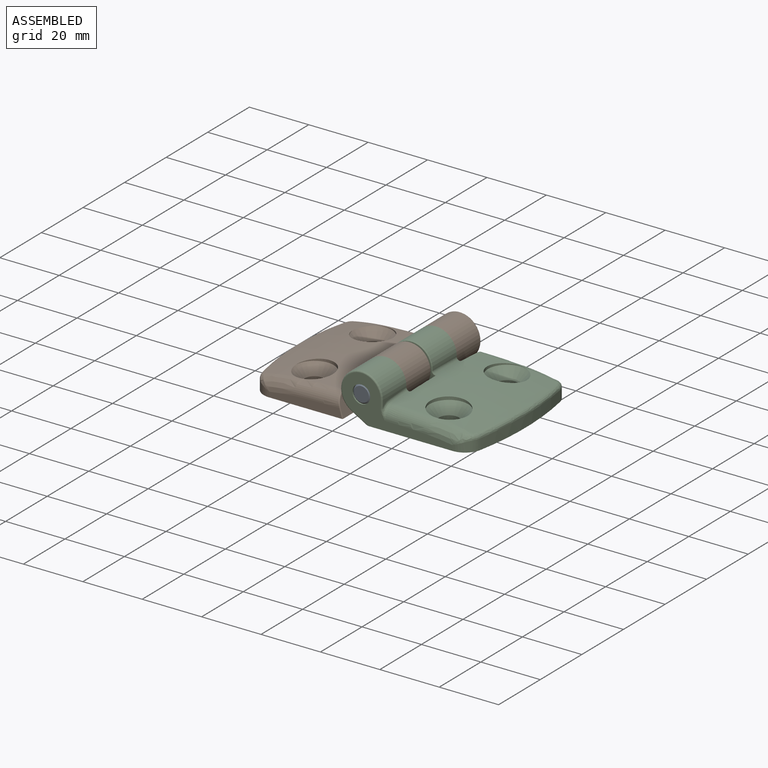
[diagram: assembled view]
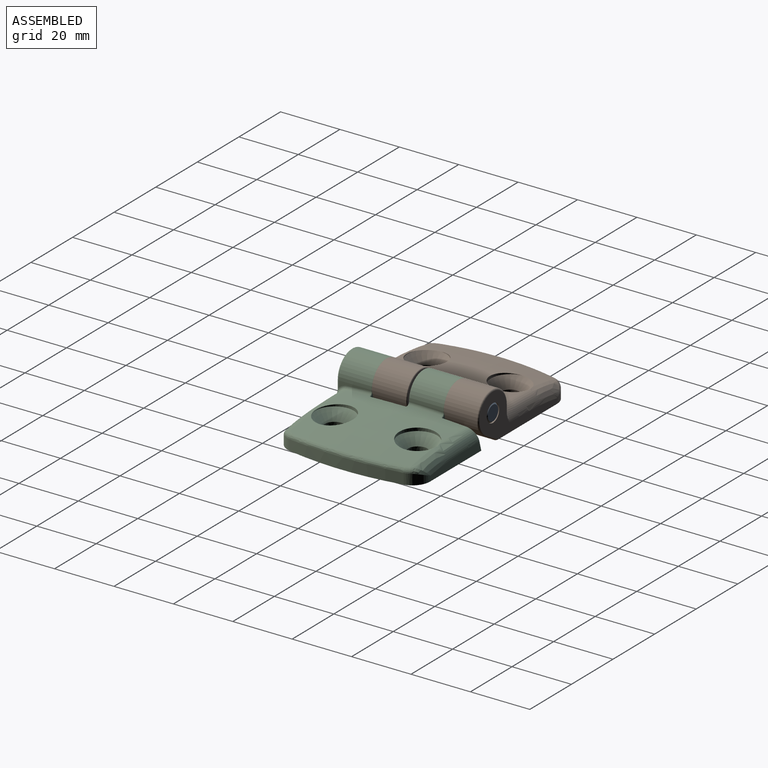
[diagram: assembled view, second angle]
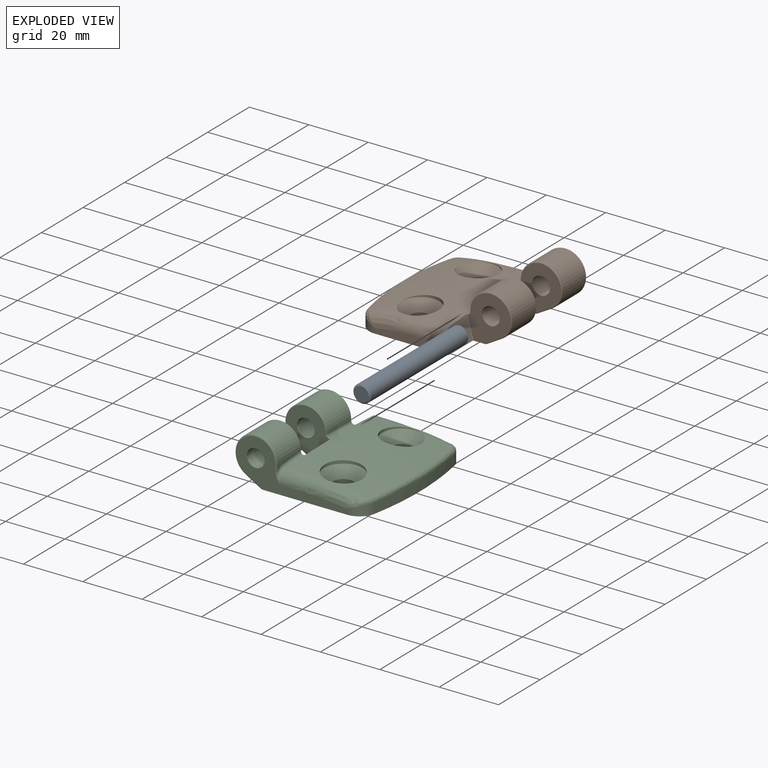
[diagram: exploded view]
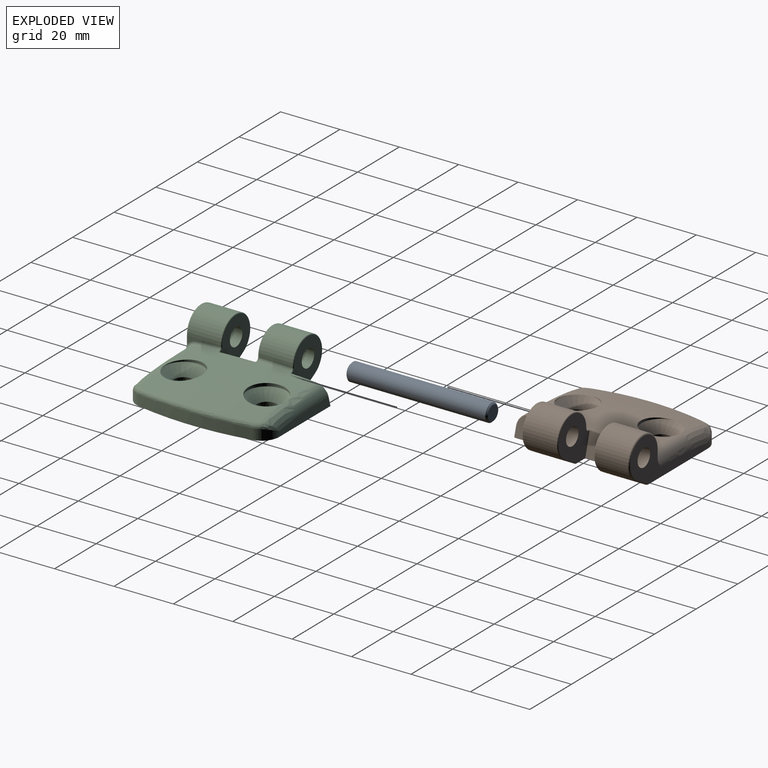
[diagram: exploded view, second angle]
ASSEMBLY  parts=3 mates=2
PART A: 5 faces, bbox 6x47.6x6 mm
  f0: cone r=2.5mm half-angle=45deg, axis (0,1,0), area 12.2mm2, adj f1,f4
  f1: cylinder r=3mm len=46.6mm, axis (0,1,0), area 878.4mm2, adj f0,f2
  f2: cone r=3mm half-angle=45deg, axis (0,-1,0), area 12.2mm2, adj f1,f3
  f3: plane 5x5mm, normal (0,1,0), area 19.6mm2, adj f2
  f4: plane 5x5mm, normal (0,-1,0), area 19.6mm2, adj f0
PART B: 70 faces, bbox 83.8x49.4x33.7 mm
  f0: torus R=251mm, axis (1,0,0), area 18mm2, adj f14,f17,f47,f48,f63
  f1: torus R=251mm, axis (1,0,0), area 12.5mm2, adj f14,f24,f40,f56,f58
  f2: cone r=3.3mm half-angle=1deg, axis (0,0,-1), area 69mm2, adj f3,f15
  f3: cone r=6.5mm half-angle=45deg, axis (0,0,1), area 138.7mm2, adj f2,f13,f69
  f4: torus R=6.7mm, axis (0,1,0), area 13.6mm2, adj f18,f29,f57,f61
  f5: torus R=6.7mm, axis (0,1,0), area 13.6mm2, adj f25,f28,f54,f55
  f6: torus R=6.7mm, axis (0,1,0), area 13.6mm2, adj f18,f31,f45,f46
  f7: cone r=3.3mm half-angle=1deg, axis (0,0,-1), area 69mm2, adj f8,f15
  f8: cone r=6.5mm half-angle=45deg, axis (0,0,1), area 138.7mm2, adj f7,f13,f32
  f9: cylinder r=3mm len=11.9mm, axis (0,-1,0), area 224.3mm2, adj f20,f28
  f10: cylinder r=100mm len=38.3mm, axis (0,0,-1), area 141.9mm2, adj f15,f21,f22,f33
  f11: cylinder r=3mm len=12mm, axis (0,-1,0), area 226.2mm2, adj f29,f31
  f12: torus R=245.19mm, axis (0,1,0), area 87.5mm2, adj f14,f16,f23,f52,f69
  f13: torus R=168.17mm, axis (-1,0,0), area 450.2mm2, adj f3,f8,f14,f16,f32,f33,f35,f37
  f14: sphere r=250mm, area 449mm2, adj f0,f1,f12,f13,f32,f36,f50,f51
  f15: plane 48.36x37.28mm, normal (0,0,-1), area 1538.6mm2, adj f2,f7,f10,f19,f20,f21,f22,f23
  f16: bspline ~12.8x5.6mm, area 63.1mm2, adj f12,f13,f23,f34,f69
  f17: plane 11.4x0.38mm, normal (-1,0,0), area 2.2mm2, adj f0,f18,f46,f61
  f18: cylinder r=7mm len=14mm, axis (0,-1,0), area 334.3mm2, adj f4,f6,f17,f19
  f19: plane 11.4x5.09mm, normal (0.5,0,-0.87), area 67mm2, adj f15,f18,f45,f57
  f20: plane 37.29x15.53mm, normal (0,1,0), area 197.4mm2, adj f9,f15,f21,f36,f37,f41,f42,f43
  f21: cylinder r=6mm len=5.89mm, axis (0,0,-1), area 23.5mm2, adj f10,f15,f20,f38,f39
  f22: cylinder r=6mm len=5.89mm, axis (0,0,-1), area 23.5mm2, adj f10,f15,f23,f34,f35
  f23: plane 24.48x3.11mm, normal (0,-1,0), area 65.7mm2, adj f12,f15,f16,f22,f53
  f24: plane 11.1x2.35mm, normal (-1,0,0), area 9.6mm2, adj f1,f25,f40,f43,f55
  f25: cylinder r=7mm len=14mm, axis (0,-1,0), area 325.5mm2, adj f5,f24,f26,f42
  f26: plane 11.1x5.09mm, normal (0.5,0,-0.87), area 65.2mm2, adj f15,f25,f41,f54
  f27: plane 11.62x7.68mm, normal (0.96,0,0.28), area 91.6mm2, adj f15,f59,f62,f66,f68
  f28: plane 15.7x14.49mm, normal (0,-1,0), area 138.2mm2, adj f5,f9,f15,f54,f55,f56,f59
  f29: plane 15.7x14.57mm, normal (0,1,0), area 138.6mm2, adj f4,f11,f15,f57,f61,f63,f66
  f30: plane 11.3x7.38mm, normal (0.96,0,0.28), area 79.9mm2, adj f15,f49,f51,f52,f53
  f31: plane 15.7x14.49mm, normal (0,-1,0), area 138.3mm2, adj f6,f11,f15,f45,f46,f47,f49
  f32: cylinder r=6.5mm len=13mm, axis (0,0,-1), area 15.9mm2, adj f8,f13,f14,f36,f37
  f33: bspline ~38.38x3mm, area 77mm2, adj f10,f13,f35,f39
  f34: bspline ~5.25x3.68mm, area 5.1mm2, adj f16,f22,f35
  f35: bspline ~1.96x1.65mm, area 3.5mm2, adj f13,f22,f33,f34
  f36: torus R=245.19mm, axis (0,-1,0), area 85.8mm2, adj f14,f20,f32,f37,f40
  f37: bspline ~12.8x5.6mm, area 63.1mm2, adj f13,f20,f32,f36,f38
  f38: bspline ~5.25x3.68mm, area 5.1mm2, adj f21,f37,f39
  f39: bspline ~1.96x1.65mm, area 3.5mm2, adj f13,f21,f33,f38
  f40: bspline ~5.03x4.68mm, area 7.4mm2, adj f1,f24,f36,f44
  f41: cylinder r=0.5mm len=6.09mm, axis (-0.87,0,-0.5), area 5mm2, adj f15,f20,f26,f42
  f42: torus R=6.5mm, axis (0,-1,0), area 22.4mm2, adj f20,f25,f41,f43
  f43: cylinder r=0.5mm len=2.34mm, axis (0,0,1), area 1.8mm2, adj f20,f24,f42,f44
  f44: bspline ~3.57x1.51mm, area 1mm2, adj f20,f40,f43
  f45: cylinder r=0.3mm len=5.69mm, axis (-0.87,0,-0.5), area 2.9mm2, adj f6,f15,f19,f31
  f46: cylinder r=0.3mm len=0.38mm, axis (0,0,1), area 0.2mm2, adj f6,f17,f31,f47
  f47: bspline ~1.28x1.14mm, area 0.7mm2, adj f0,f31,f46,f48
  f48: bspline ~0.3x0.3mm, area 0.1mm2, adj f0,f47,f49,f50
  f49: cylinder r=0.3mm len=7.54mm, axis (0.28,0,-0.96), area 3.6mm2, adj f15,f30,f31,f48,f50
  f50: bspline ~0.56x0.5mm, area 0.2mm2, adj f14,f48,f49,f51
  f51: torus R=240.02mm, axis (-0.96,0,-0.28), area 3.1mm2, adj f14,f30,f50,f52
  f52: bspline ~3.99x3.7mm, area 2.5mm2, adj f12,f30,f51,f53
  f53: cylinder r=0.3mm len=3.25mm, axis (-0.28,0,0.96), area 1.5mm2, adj f15,f23,f30,f52
  f54: cylinder r=0.3mm len=5.69mm, axis (-0.87,0,-0.5), area 2.9mm2, adj f5,f15,f26,f28
  f55: cylinder r=0.3mm len=0.41mm, axis (0,0,1), area 0.2mm2, adj f5,f24,f28,f56
  f56: bspline ~1.28x1.14mm, area 0.7mm2, adj f1,f28,f55,f58
  f57: cylinder r=0.3mm len=5.69mm, axis (0.87,0,0.5), area 2.9mm2, adj f4,f15,f19,f29
  f58: bspline ~0.33x0.3mm, area 0.1mm2, adj f1,f56,f59,f60
  f59: cylinder r=0.3mm len=7.57mm, axis (-0.28,0,0.96), area 3.6mm2, adj f15,f27,f28,f58,f60
  f60: bspline ~0.58x0.51mm, area 0.2mm2, adj f14,f58,f59,f62
  f61: cylinder r=0.3mm len=0.3mm, axis (0,0,-1), area 0mm2, adj f4,f17,f29,f63
  f62: torus R=240.02mm, axis (0.96,0,0.28), area 4.6mm2, adj f14,f27,f60,f65,f67
  f63: bspline ~1.3x1.3mm, area 0.8mm2, adj f0,f29,f61,f64,f67,f68
  f64: torus R=249.7mm, axis (0,1,0), area 0.1mm2, adj f14,f63,f65
  f65: bspline ~0.49x0.49mm, area 0.1mm2, adj f62,f64,f67
  f66: cylinder r=0.3mm len=7.69mm, axis (0.28,0,-0.96), area 3.7mm2, adj f15,f27,f29,f68
  f67: bspline ~0.34x0.33mm, area 0mm2, adj f62,f63,f65,f68
  f68: bspline ~0.33x0.31mm, area 0.1mm2, adj f27,f63,f66,f67
  f69: cylinder r=6.5mm len=13mm, axis (0,0,-1), area 15.9mm2, adj f3,f12,f13,f14,f16
PART C: 70 faces, bbox 83.8x49.4x33.7 mm
  f0: torus R=251mm, axis (-1,0,0), area 18mm2, adj f14,f17,f47,f48,f63
  f1: torus R=251mm, axis (-1,0,0), area 12.5mm2, adj f14,f24,f40,f56,f58
  f2: cone r=3.3mm half-angle=1deg, axis (0,0,-1), area 69mm2, adj f3,f15
  f3: cone r=6.5mm half-angle=45deg, axis (0,0,1), area 138.7mm2, adj f2,f13,f69
  f4: torus R=6.7mm, axis (0,-1,0), area 13.6mm2, adj f18,f29,f57,f61
  f5: torus R=6.7mm, axis (0,-1,0), area 13.6mm2, adj f25,f28,f54,f55
  f6: torus R=6.7mm, axis (0,-1,0), area 13.6mm2, adj f18,f31,f45,f46
  f7: cone r=3.3mm half-angle=1deg, axis (0,0,-1), area 69mm2, adj f8,f15
  f8: cone r=6.5mm half-angle=45deg, axis (0,0,1), area 138.7mm2, adj f7,f13,f32
  f9: cylinder r=3mm len=11.9mm, axis (0,1,0), area 224.3mm2, adj f20,f28
  f10: cylinder r=100mm len=38.3mm, axis (0,0,-1), area 141.9mm2, adj f15,f21,f22,f33
  f11: cylinder r=3mm len=12mm, axis (0,1,0), area 226.2mm2, adj f29,f31
  f12: torus R=245.19mm, axis (0,-1,0), area 87.5mm2, adj f14,f16,f23,f52,f69
  f13: torus R=168.17mm, axis (1,0,0), area 450.2mm2, adj f3,f8,f14,f16,f32,f33,f35,f37
  f14: sphere r=250mm, area 449mm2, adj f0,f1,f12,f13,f32,f36,f50,f51
  f15: plane 48.36x37.28mm, normal (0,0,-1), area 1538.6mm2, adj f2,f7,f10,f19,f20,f21,f22,f23
  f16: bspline ~12.8x5.6mm, area 63.1mm2, adj f12,f13,f23,f34,f69
  f17: plane 11.4x0.38mm, normal (1,0,0), area 2.2mm2, adj f0,f18,f46,f61
  f18: cylinder r=7mm len=14mm, axis (0,1,0), area 334.3mm2, adj f4,f6,f17,f19
  f19: plane 11.4x5.09mm, normal (-0.5,0,-0.87), area 67mm2, adj f15,f18,f45,f57
  f20: plane 37.29x15.53mm, normal (0,-1,0), area 197.4mm2, adj f9,f15,f21,f36,f37,f41,f42,f43
  f21: cylinder r=6mm len=5.89mm, axis (0,0,-1), area 23.5mm2, adj f10,f15,f20,f38,f39
  f22: cylinder r=6mm len=5.89mm, axis (0,0,-1), area 23.5mm2, adj f10,f15,f23,f34,f35
  f23: plane 24.48x3.11mm, normal (0,1,0), area 65.7mm2, adj f12,f15,f16,f22,f53
  f24: plane 11.1x2.35mm, normal (1,0,0), area 9.6mm2, adj f1,f25,f40,f43,f55
  f25: cylinder r=7mm len=14mm, axis (0,1,0), area 325.5mm2, adj f5,f24,f26,f42
  f26: plane 11.1x5.09mm, normal (-0.5,0,-0.87), area 65.2mm2, adj f15,f25,f41,f54
  f27: plane 11.62x7.68mm, normal (-0.96,0,0.28), area 91.6mm2, adj f15,f59,f62,f66,f68
  f28: plane 15.7x14.49mm, normal (0,1,0), area 138.2mm2, adj f5,f9,f15,f54,f55,f56,f59
  f29: plane 15.7x14.57mm, normal (0,-1,0), area 138.6mm2, adj f4,f11,f15,f57,f61,f63,f66
  f30: plane 11.3x7.38mm, normal (-0.96,0,0.28), area 79.9mm2, adj f15,f49,f51,f52,f53
  f31: plane 15.7x14.49mm, normal (0,1,0), area 138.3mm2, adj f6,f11,f15,f45,f46,f47,f49
  f32: cylinder r=6.5mm len=13mm, axis (0,0,-1), area 15.9mm2, adj f8,f13,f14,f36,f37
  f33: bspline ~38.38x3mm, area 77mm2, adj f10,f13,f35,f39
  f34: bspline ~5.25x3.68mm, area 5.1mm2, adj f16,f22,f35
  f35: bspline ~1.96x1.65mm, area 3.5mm2, adj f13,f22,f33,f34
  f36: torus R=245.19mm, axis (0,1,0), area 85.8mm2, adj f14,f20,f32,f37,f40
  f37: bspline ~12.8x5.6mm, area 63.1mm2, adj f13,f20,f32,f36,f38
  f38: bspline ~5.25x3.68mm, area 5.1mm2, adj f21,f37,f39
  f39: bspline ~1.96x1.65mm, area 3.5mm2, adj f13,f21,f33,f38
  f40: bspline ~5.03x4.68mm, area 7.4mm2, adj f1,f24,f36,f44
  f41: cylinder r=0.5mm len=6.09mm, axis (0.87,0,-0.5), area 5mm2, adj f15,f20,f26,f42
  f42: torus R=6.5mm, axis (0,1,0), area 22.4mm2, adj f20,f25,f41,f43
  f43: cylinder r=0.5mm len=2.34mm, axis (0,0,1), area 1.8mm2, adj f20,f24,f42,f44
  f44: bspline ~3.57x1.51mm, area 1mm2, adj f20,f40,f43
  f45: cylinder r=0.3mm len=5.69mm, axis (0.87,0,-0.5), area 2.9mm2, adj f6,f15,f19,f31
  f46: cylinder r=0.3mm len=0.38mm, axis (0,0,1), area 0.2mm2, adj f6,f17,f31,f47
  f47: bspline ~1.28x1.14mm, area 0.7mm2, adj f0,f31,f46,f48
  f48: bspline ~0.3x0.3mm, area 0.1mm2, adj f0,f47,f49,f50
  f49: cylinder r=0.3mm len=7.54mm, axis (-0.28,0,-0.96), area 3.6mm2, adj f15,f30,f31,f48,f50
  f50: bspline ~0.56x0.5mm, area 0.2mm2, adj f14,f48,f49,f51
  f51: torus R=240.02mm, axis (0.96,0,-0.28), area 3.1mm2, adj f14,f30,f50,f52
  f52: bspline ~3.99x3.7mm, area 2.5mm2, adj f12,f30,f51,f53
  f53: cylinder r=0.3mm len=3.25mm, axis (0.28,0,0.96), area 1.5mm2, adj f15,f23,f30,f52
  f54: cylinder r=0.3mm len=5.69mm, axis (0.87,0,-0.5), area 2.9mm2, adj f5,f15,f26,f28
  f55: cylinder r=0.3mm len=0.41mm, axis (0,0,1), area 0.2mm2, adj f5,f24,f28,f56
  f56: bspline ~1.28x1.14mm, area 0.7mm2, adj f1,f28,f55,f58
  f57: cylinder r=0.3mm len=5.69mm, axis (-0.87,0,0.5), area 2.9mm2, adj f4,f15,f19,f29
  f58: bspline ~0.33x0.3mm, area 0.1mm2, adj f1,f56,f59,f60
  f59: cylinder r=0.3mm len=7.57mm, axis (0.28,0,0.96), area 3.6mm2, adj f15,f27,f28,f58,f60
  f60: bspline ~0.58x0.51mm, area 0.2mm2, adj f14,f58,f59,f62
  f61: cylinder r=0.3mm len=0.3mm, axis (0,0,-1), area 0mm2, adj f4,f17,f29,f63
  f62: torus R=240.02mm, axis (-0.96,0,0.28), area 4.6mm2, adj f14,f27,f60,f65,f67
  f63: bspline ~1.3x1.3mm, area 0.8mm2, adj f0,f29,f61,f64,f67,f68
  f64: torus R=249.7mm, axis (0,-1,0), area 0.1mm2, adj f14,f63,f65
  f65: bspline ~0.49x0.49mm, area 0.1mm2, adj f62,f64,f67
  f66: cylinder r=0.3mm len=7.69mm, axis (-0.28,0,-0.96), area 3.7mm2, adj f15,f27,f29,f68
  f67: bspline ~0.34x0.33mm, area 0mm2, adj f62,f63,f65,f68
  f68: bspline ~0.33x0.31mm, area 0.1mm2, adj f27,f63,f66,f67
  f69: cylinder r=6.5mm len=13mm, axis (0,0,-1), area 15.9mm2, adj f3,f12,f13,f14,f16
PLACE A t=(25.61,-30.28,25.38)mm
PLACE B t=(25.61,-30.48,25.38)mm
PLACE C t=(25.61,-30.08,25.38)mm
MATE fastened C.f4 <-> A.f0  axis (0,-1,0) through (25.61,-54.08,34.38)mm
MATE revolute B.f4 <-> A.f0  axis (0,1,0) through (25.61,-6.48,34.38)mm
